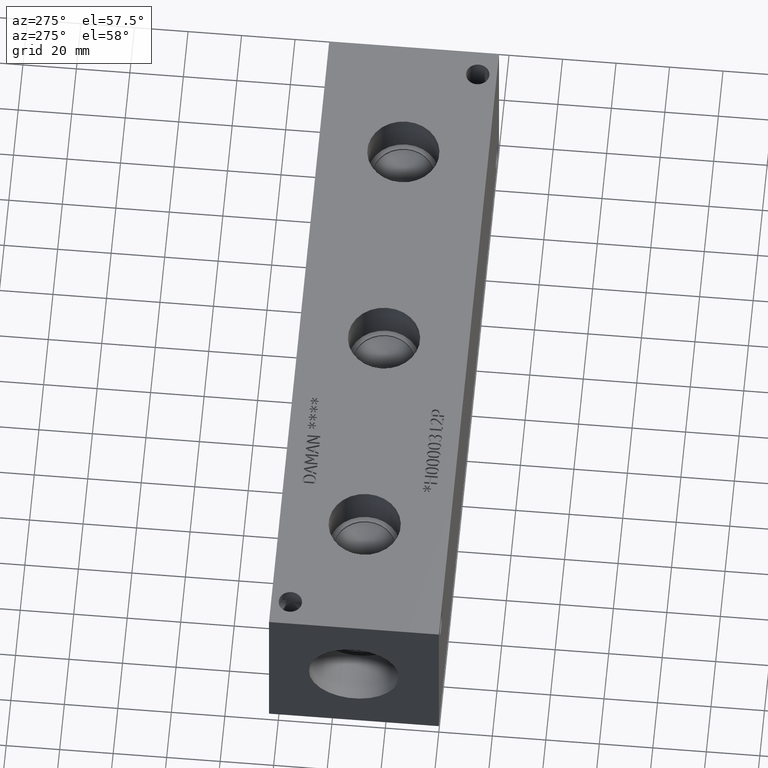
[diagram: clean part render]
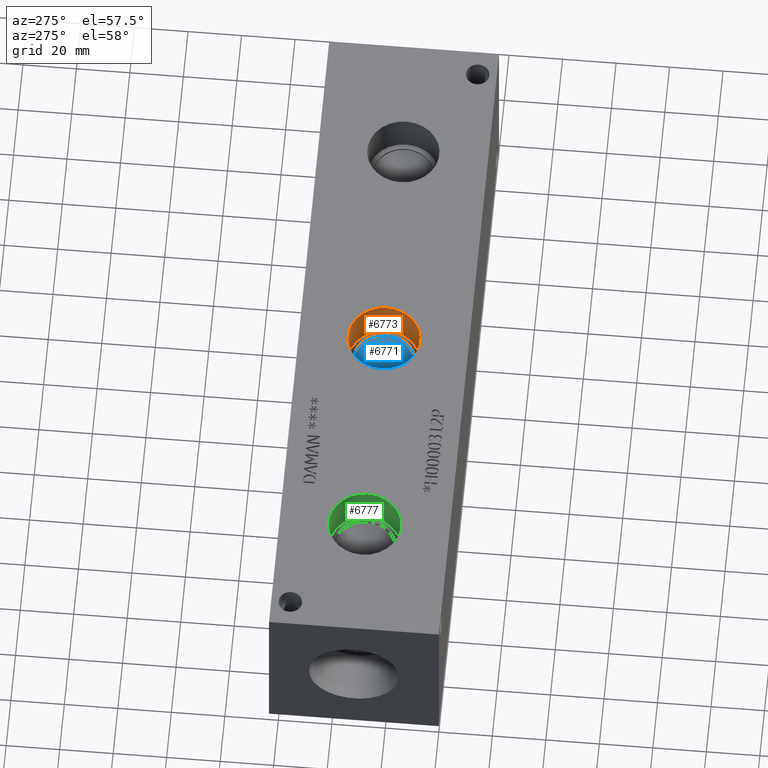
[diagram: same view with three faces highlighted in distinct colors, each labeled with its STEP entity id]
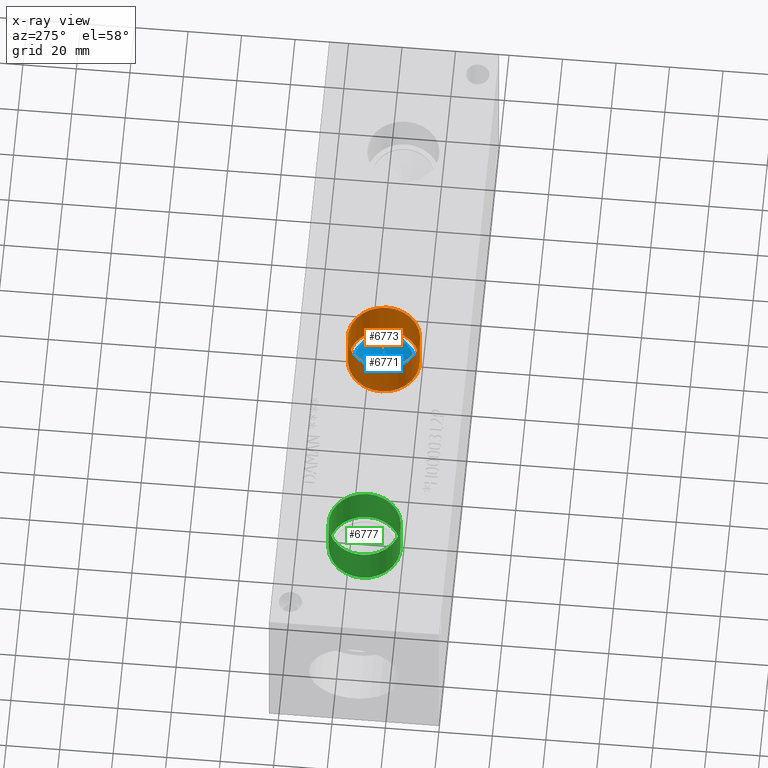
[diagram: x-ray of the same camera — body ghosted, the three highlighted faces saturated]
A machine part, auxiliary view with three faces highlighted in distinct colors.
The next image is the same camera in x-ray (body ghosted, the three faces saturated) — at least one of them is partly hidden behind the body in this view.
Their STEP definitions:

[orange] entity #6773 — the highlighted cylindrical surface (bore or boss wall) has radius 13.462 mm, axis along (0, 0, 1).
#35=CYLINDRICAL_SURFACE('',#7064,13.462);
#49=CIRCLE('',#6888,13.462);
#50=CIRCLE('',#6889,13.462);
#65=CIRCLE('',#7061,13.462);
#66=CIRCLE('',#7062,13.462);
#677=FACE_OUTER_BOUND('',#1051,.T.);
#1051=EDGE_LOOP('',(#5943,#5944,#5945,#5946,#5947,#5948));
#1750=LINE('',#11431,#2435);
#2435=VECTOR('',#8285,13.462);
#3071=VERTEX_POINT('',#10702);
#3072=VERTEX_POINT('',#10703);
#3236=VERTEX_POINT('',#11424);
#3237=VERTEX_POINT('',#11425);
#3844=EDGE_CURVE('',#3071,#3072,#49,.T.);
#3845=EDGE_CURVE('',#3072,#3071,#50,.T.);
#4152=EDGE_CURVE('',#3236,#3237,#65,.T.);
#4153=EDGE_CURVE('',#3237,#3236,#66,.T.);
#4155=EDGE_CURVE('',#3072,#3237,#1750,.T.);
#5943=ORIENTED_EDGE('',*,*,#3844,.F.);
#5944=ORIENTED_EDGE('',*,*,#3845,.F.);
#5945=ORIENTED_EDGE('',*,*,#4155,.T.);
#5946=ORIENTED_EDGE('',*,*,#4152,.F.);
#5947=ORIENTED_EDGE('',*,*,#4153,.F.);
#5948=ORIENTED_EDGE('',*,*,#4155,.F.);
#6773=ADVANCED_FACE('',(#677),#35,.F.);
#6888=AXIS2_PLACEMENT_3D('',#10704,#7659,#7660);
#6889=AXIS2_PLACEMENT_3D('',#10705,#7661,#7662);
#7061=AXIS2_PLACEMENT_3D('',#11426,#8277,#8278);
#7062=AXIS2_PLACEMENT_3D('',#11427,#8279,#8280);
#7064=AXIS2_PLACEMENT_3D('',#11430,#8283,#8284);
#7659=DIRECTION('center_axis',(0.,0.,-1.));
#7660=DIRECTION('ref_axis',(1.,0.,0.));
#7661=DIRECTION('center_axis',(0.,0.,-1.));
#7662=DIRECTION('ref_axis',(1.,0.,0.));
#8277=DIRECTION('center_axis',(0.,0.,1.));
#8278=DIRECTION('ref_axis',(1.,0.,0.));
#8279=DIRECTION('center_axis',(0.,0.,1.));
#8280=DIRECTION('ref_axis',(1.,0.,0.));
#8283=DIRECTION('center_axis',(0.,0.,1.));
#8284=DIRECTION('ref_axis',(1.,0.,0.));
#8285=DIRECTION('',(0.,0.,-1.));
#10702=CARTESIAN_POINT('',(142.0368,31.75,63.5));
#10703=CARTESIAN_POINT('',(115.1128,31.75,63.5));
#10704=CARTESIAN_POINT('Origin',(128.5748,31.75,63.5));
#10705=CARTESIAN_POINT('Origin',(128.5748,31.75,63.5));
#11424=CARTESIAN_POINT('',(142.0368,31.75,47.6504));
#11425=CARTESIAN_POINT('',(115.1128,31.75,47.6504));
#11426=CARTESIAN_POINT('Origin',(128.5748,31.75,47.6504));
#11427=CARTESIAN_POINT('Origin',(128.5748,31.75,47.6504));
#11430=CARTESIAN_POINT('Origin',(128.5748,31.75,55.5752));
#11431=CARTESIAN_POINT('',(115.1128,31.75,55.5752));

[blue] entity #6771 — the highlighted conical surface has half-angle 60 deg.
#14=CONICAL_SURFACE('',#7057,5.7531,1.0471975511966);
#63=CIRCLE('',#7058,11.5062);
#64=CIRCLE('',#7059,11.5062);
#675=FACE_OUTER_BOUND('',#1048,.T.);
#1048=EDGE_LOOP('',(#5936,#5937,#5938,#5939));
#1749=LINE('',#11421,#2434);
#2434=VECTOR('',#8272,5.7531);
#3233=VERTEX_POINT('',#11417);
#3234=VERTEX_POINT('',#11418);
#3235=VERTEX_POINT('',#11420);
#4149=EDGE_CURVE('',#3233,#3234,#63,.T.);
#4150=EDGE_CURVE('',#3234,#3235,#1749,.T.);
#4151=EDGE_CURVE('',#3234,#3233,#64,.T.);
#5936=ORIENTED_EDGE('',*,*,#4149,.T.);
#5937=ORIENTED_EDGE('',*,*,#4150,.T.);
#5938=ORIENTED_EDGE('',*,*,#4150,.F.);
#5939=ORIENTED_EDGE('',*,*,#4151,.T.);
#6771=ADVANCED_FACE('',(#675),#14,.F.);
#7057=AXIS2_PLACEMENT_3D('',#11416,#8268,#8269);
#7058=AXIS2_PLACEMENT_3D('',#11419,#8270,#8271);
#7059=AXIS2_PLACEMENT_3D('',#11422,#8273,#8274);
#8268=DIRECTION('center_axis',(0.,0.,1.));
#8269=DIRECTION('ref_axis',(1.,0.,0.));
#8270=DIRECTION('center_axis',(0.,0.,1.));
#8271=DIRECTION('ref_axis',(1.,0.,0.));
#8272=DIRECTION('',(0.866025403784439,1.06057523872491E-16,-0.5));
#8273=DIRECTION('center_axis',(0.,0.,1.));
#8274=DIRECTION('ref_axis',(1.,0.,0.));
#11416=CARTESIAN_POINT('Origin',(128.5748,31.75,43.6645361663252));
#11417=CARTESIAN_POINT('',(140.081,31.75,46.98609));
#11418=CARTESIAN_POINT('',(117.0686,31.75,46.98609));
#11419=CARTESIAN_POINT('Origin',(128.5748,31.75,46.98609));
#11420=CARTESIAN_POINT('',(128.5748,31.75,40.3429823326503));
#11421=CARTESIAN_POINT('',(122.8217,31.75,43.6645361663252));
#11422=CARTESIAN_POINT('Origin',(128.5748,31.75,46.98609));

[green] entity #6777 — the highlighted cylindrical surface (bore or boss wall) has radius 13.462 mm, axis along (0, 0, 1).
#37=CYLINDRICAL_SURFACE('',#7073,13.462);
#51=CIRCLE('',#6890,13.462);
#52=CIRCLE('',#6891,13.462);
#70=CIRCLE('',#7070,13.462);
#71=CIRCLE('',#7071,13.462);
#681=FACE_OUTER_BOUND('',#1056,.T.);
#1056=EDGE_LOOP('',(#5961,#5962,#5963,#5964,#5965,#5966));
#1753=LINE('',#11449,#2438);
#2438=VECTOR('',#8306,13.462);
#3073=VERTEX_POINT('',#10706);
#3074=VERTEX_POINT('',#10707);
#3242=VERTEX_POINT('',#11442);
#3243=VERTEX_POINT('',#11443);
#3846=EDGE_CURVE('',#3073,#3074,#51,.T.);
#3847=EDGE_CURVE('',#3074,#3073,#52,.T.);
#4160=EDGE_CURVE('',#3242,#3243,#70,.T.);
#4161=EDGE_CURVE('',#3243,#3242,#71,.T.);
#4163=EDGE_CURVE('',#3074,#3243,#1753,.T.);
#5961=ORIENTED_EDGE('',*,*,#3846,.F.);
#5962=ORIENTED_EDGE('',*,*,#3847,.F.);
#5963=ORIENTED_EDGE('',*,*,#4163,.T.);
#5964=ORIENTED_EDGE('',*,*,#4160,.F.);
#5965=ORIENTED_EDGE('',*,*,#4161,.F.);
#5966=ORIENTED_EDGE('',*,*,#4163,.F.);
#6777=ADVANCED_FACE('',(#681),#37,.F.);
#6890=AXIS2_PLACEMENT_3D('',#10708,#7663,#7664);
#6891=AXIS2_PLACEMENT_3D('',#10709,#7665,#7666);
#7070=AXIS2_PLACEMENT_3D('',#11444,#8298,#8299);
#7071=AXIS2_PLACEMENT_3D('',#11445,#8300,#8301);
#7073=AXIS2_PLACEMENT_3D('',#11448,#8304,#8305);
#7663=DIRECTION('center_axis',(0.,0.,-1.));
#7664=DIRECTION('ref_axis',(1.,0.,0.));
#7665=DIRECTION('center_axis',(0.,0.,-1.));
#7666=DIRECTION('ref_axis',(1.,0.,0.));
#8298=DIRECTION('center_axis',(0.,0.,1.));
#8299=DIRECTION('ref_axis',(1.,0.,0.));
#8300=DIRECTION('center_axis',(0.,0.,1.));
#8301=DIRECTION('ref_axis',(1.,0.,0.));
#8304=DIRECTION('center_axis',(0.,0.,1.));
#8305=DIRECTION('ref_axis',(1.,0.,0.));
#8306=DIRECTION('',(0.,0.,-1.));
#10706=CARTESIAN_POINT('',(59.4868,31.75,63.5));
#10707=CARTESIAN_POINT('',(32.5628,31.75,63.5));
#10708=CARTESIAN_POINT('Origin',(46.0248,31.75,63.5));
#10709=CARTESIAN_POINT('Origin',(46.0248,31.75,63.5));
#11442=CARTESIAN_POINT('',(59.4868,31.75,47.6504));
#11443=CARTESIAN_POINT('',(32.5628,31.75,47.6504));
#11444=CARTESIAN_POINT('Origin',(46.0248,31.75,47.6504));
#11445=CARTESIAN_POINT('Origin',(46.0248,31.75,47.6504));
#11448=CARTESIAN_POINT('Origin',(46.0248,31.75,55.5752));
#11449=CARTESIAN_POINT('',(32.5628,31.75,55.5752));